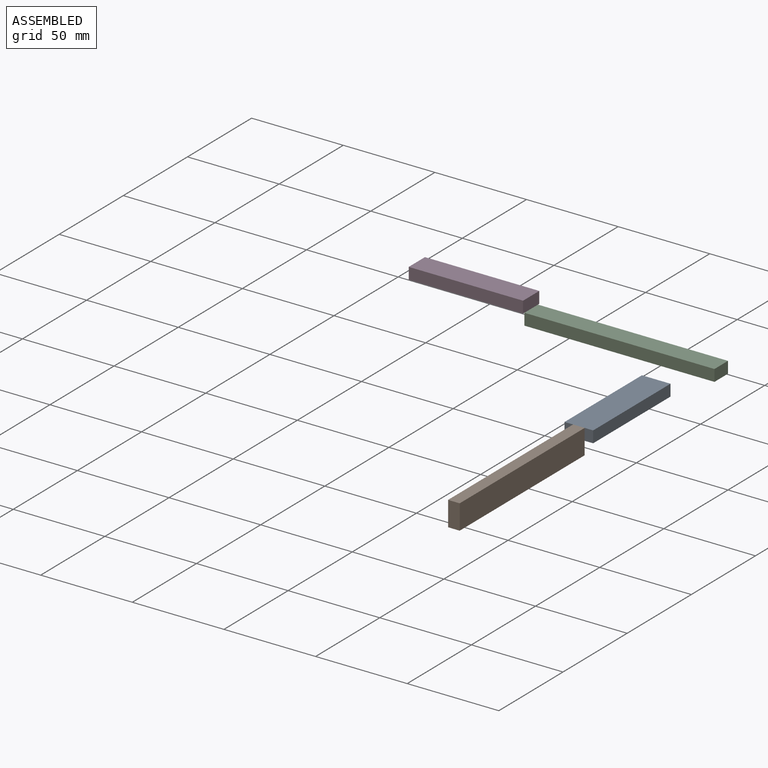
[diagram: assembled view]
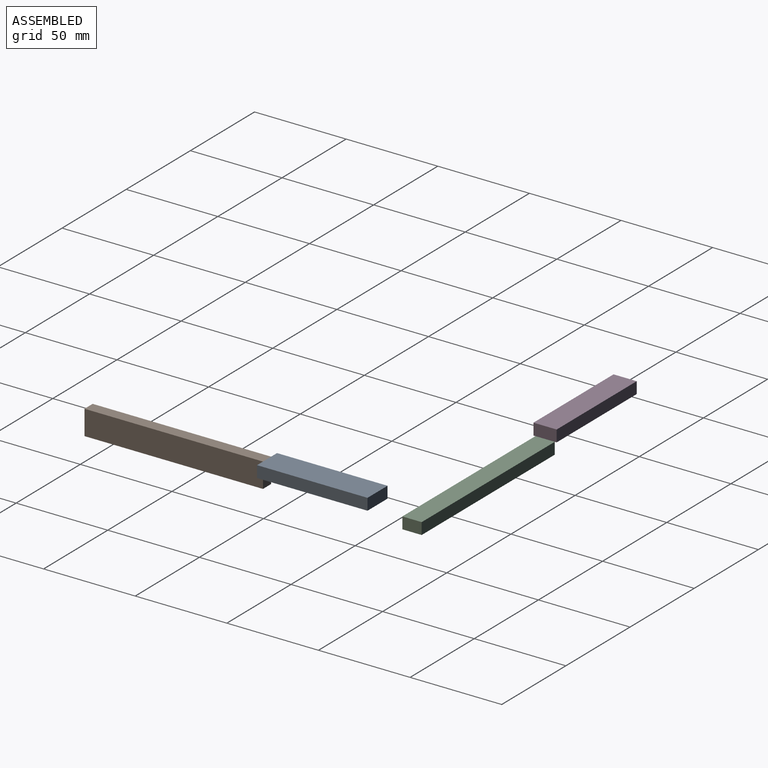
[diagram: assembled view, second angle]
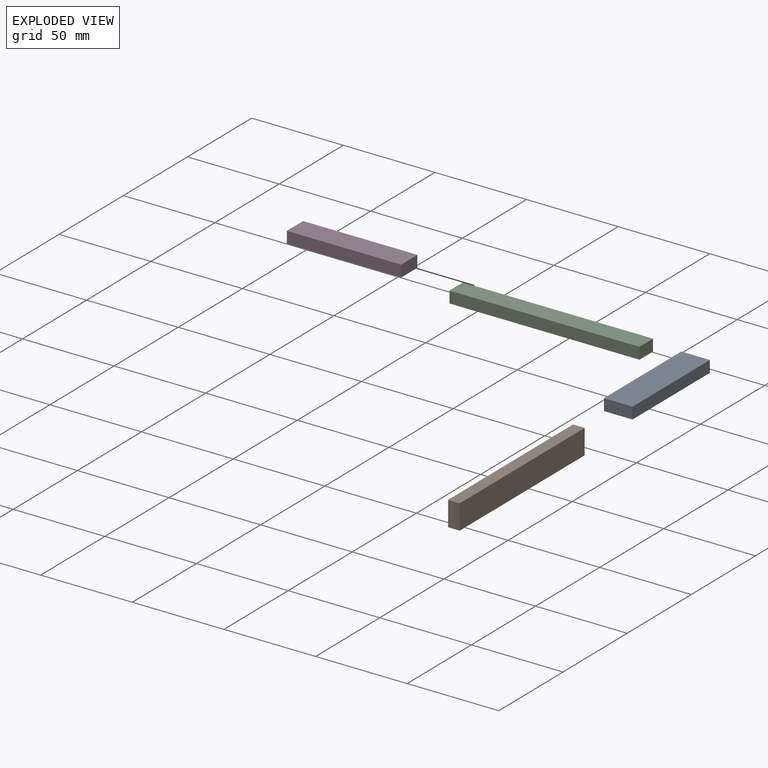
[diagram: exploded view]
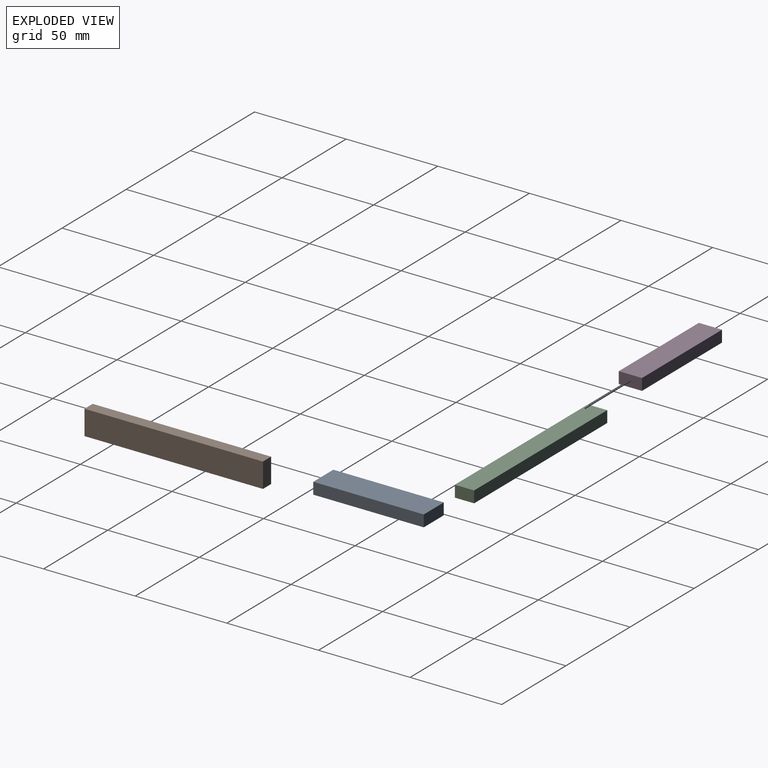
[diagram: exploded view, second angle]
ASSEMBLY  parts=4 mates=2
PART A: 6 faces, bbox 15.6x60.3x6.4 mm
  f0: plane 15.6x6.35mm, normal (0,1,0), area 99mm2, adj f1,f3,f4,f5
  f1: plane 60.28x6.35mm, normal (-1,0,0), area 382.8mm2, adj f0,f2,f4,f5
  f2: plane 15.6x6.35mm, normal (0,-1,0), area 99mm2, adj f1,f3,f4,f5
  f3: plane 60.28x6.35mm, normal (1,0,0), area 382.8mm2, adj f0,f2,f4,f5
  f4: plane 60.28x15.6mm, normal (0,0,1), area 940.3mm2, adj f0,f1,f2,f3
  f5: plane 60.28x15.6mm, normal (0,0,-1), area 940.3mm2, adj f0,f1,f2,f3
PART B: 6 faces, bbox 97.4x13.5x6.4 mm
  f0: plane 97.38x6.35mm, normal (0,1,0), area 618.4mm2, adj f1,f3,f4,f5
  f1: plane 13.49x6.35mm, normal (-1,0,0), area 85.7mm2, adj f0,f2,f4,f5
  f2: plane 97.38x6.35mm, normal (0,-1,0), area 618.4mm2, adj f1,f3,f4,f5
  f3: plane 13.49x6.35mm, normal (1,0,0), area 85.7mm2, adj f0,f2,f4,f5
  f4: plane 97.38x13.49mm, normal (0,0,1), area 1313.7mm2, adj f0,f1,f2,f3
  f5: plane 97.38x13.49mm, normal (0,0,-1), area 1313.7mm2, adj f0,f1,f2,f3
PART C: 6 faces, bbox 103.7x10.5x6.4 mm
  f0: plane 103.7x6.35mm, normal (0,1,0), area 658.5mm2, adj f1,f3,f4,f5
  f1: plane 10.54x6.35mm, normal (-1,0,0), area 66.9mm2, adj f0,f2,f4,f5
  f2: plane 103.7x6.35mm, normal (0,-1,0), area 658.5mm2, adj f1,f3,f4,f5
  f3: plane 10.54x6.35mm, normal (1,0,0), area 66.9mm2, adj f0,f2,f4,f5
  f4: plane 103.7x10.54mm, normal (0,0,1), area 1092.9mm2, adj f0,f1,f2,f3
  f5: plane 103.7x10.54mm, normal (0,0,-1), area 1092.9mm2, adj f0,f1,f2,f3
PART D: 6 faces, bbox 12.6x62.4x6.4 mm
  f0: plane 12.65x6.35mm, normal (0,1,0), area 80.3mm2, adj f1,f3,f4,f5
  f1: plane 62.39x6.35mm, normal (-1,0,0), area 396.2mm2, adj f0,f2,f4,f5
  f2: plane 12.65x6.35mm, normal (0,-1,0), area 80.3mm2, adj f1,f3,f4,f5
  f3: plane 62.39x6.35mm, normal (1,0,0), area 396.2mm2, adj f0,f2,f4,f5
  f4: plane 62.39x12.65mm, normal (0,0,1), area 789mm2, adj f0,f1,f2,f3
  f5: plane 62.39x12.65mm, normal (0,0,-1), area 789mm2, adj f0,f1,f2,f3
PLACE A at identity
PLACE B rot(axis=(0.58,-0.58,-0.58),120deg) t=(31.21,-127.53,-49.5)mm
PLACE C at identity
PLACE D rot(axis=(0.71,-0.71,0),180deg) t=(-113.19,-18.13,12.7)mm
MATE fastened B.f1 <-> A.f2  axis (0,1,0) through (28.03,-63.45,6.35)mm
MATE fastened D.f4 <-> C.f4  axis (0,0,-1) through (-60.7,26.13,6.35)mm
